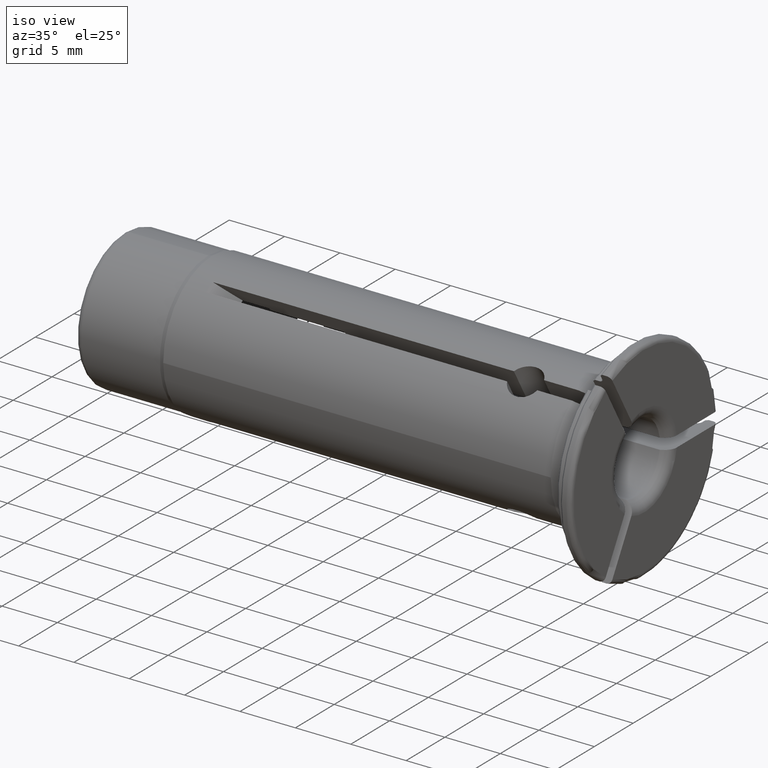
[diagram: clean part render]
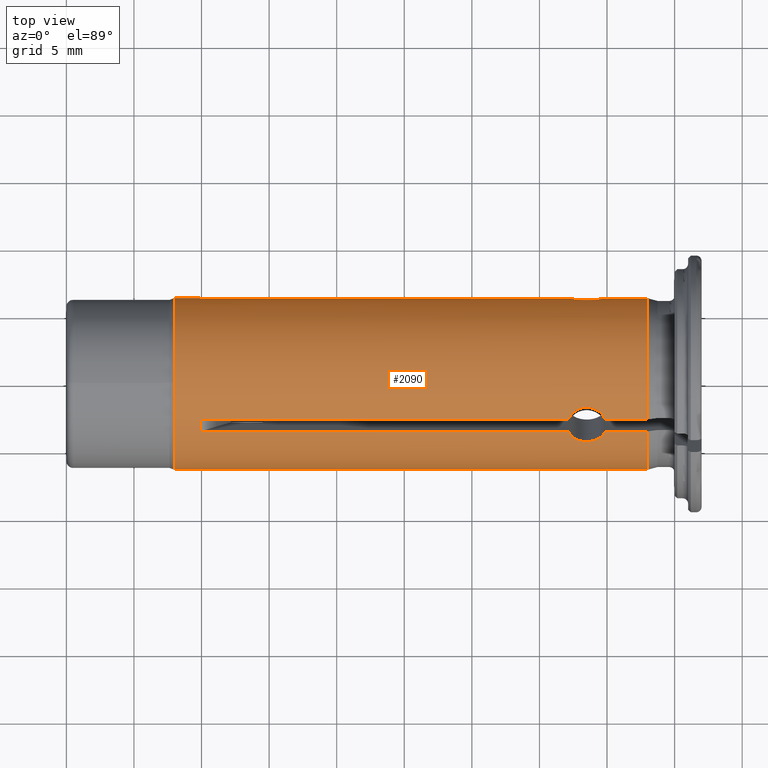
[diagram: tour spotlight — one face highlighted and labeled with its STEP entity id]
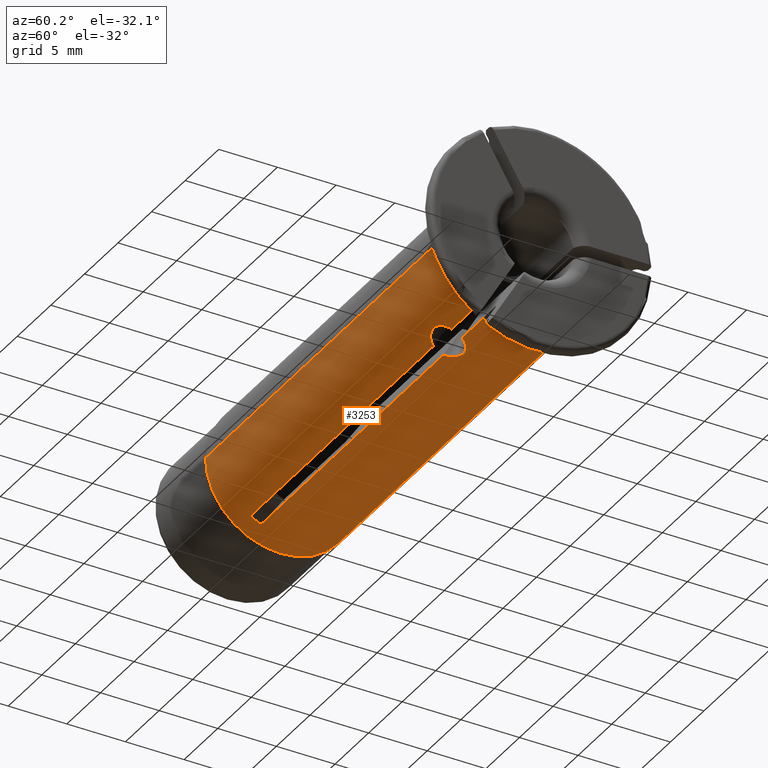
[diagram: tour spotlight — one face highlighted and labeled with its STEP entity id]
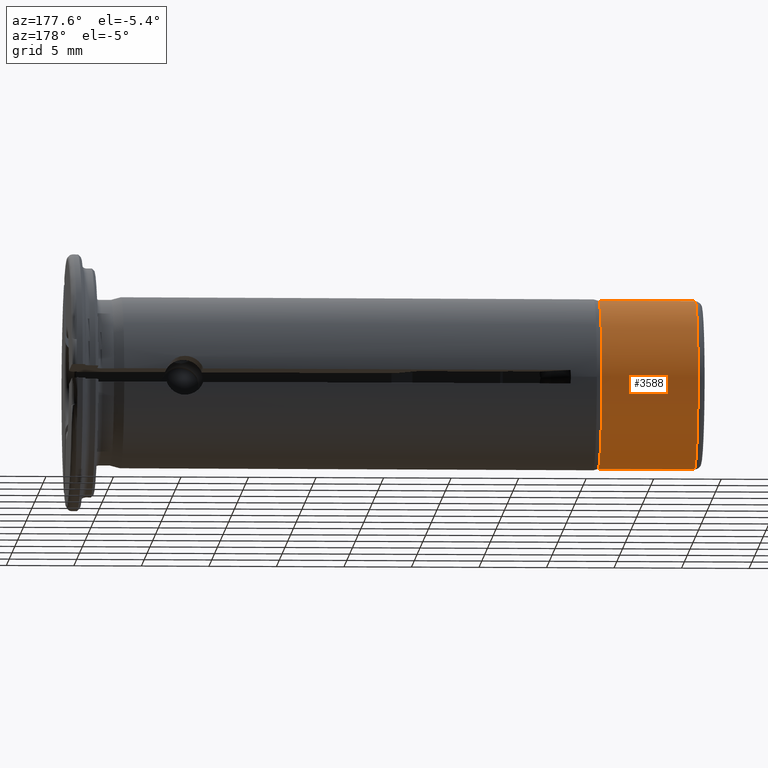
[diagram: tour spotlight — one face highlighted and labeled with its STEP entity id]
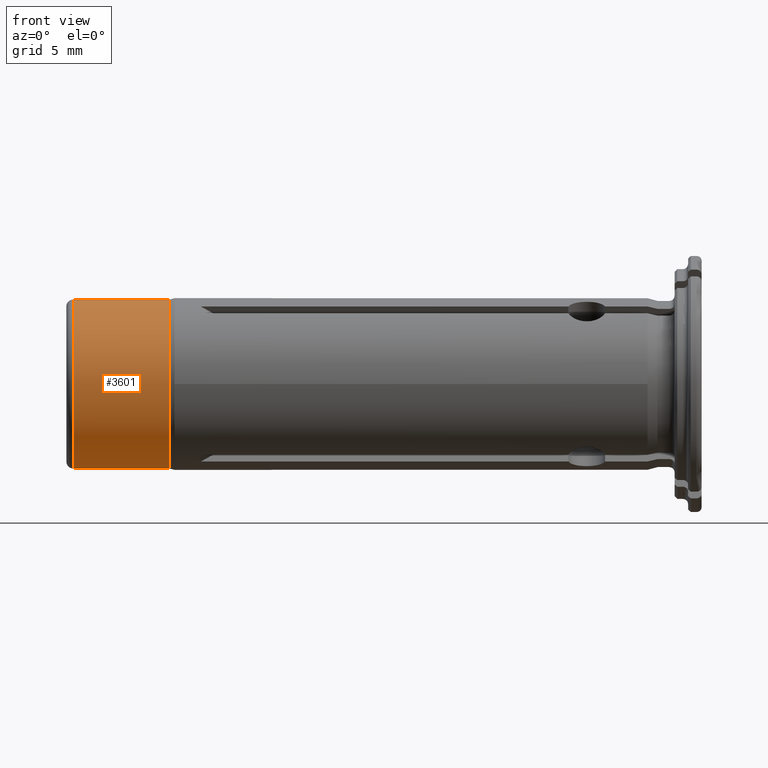
[diagram: tour spotlight — one face highlighted and labeled with its STEP entity id]
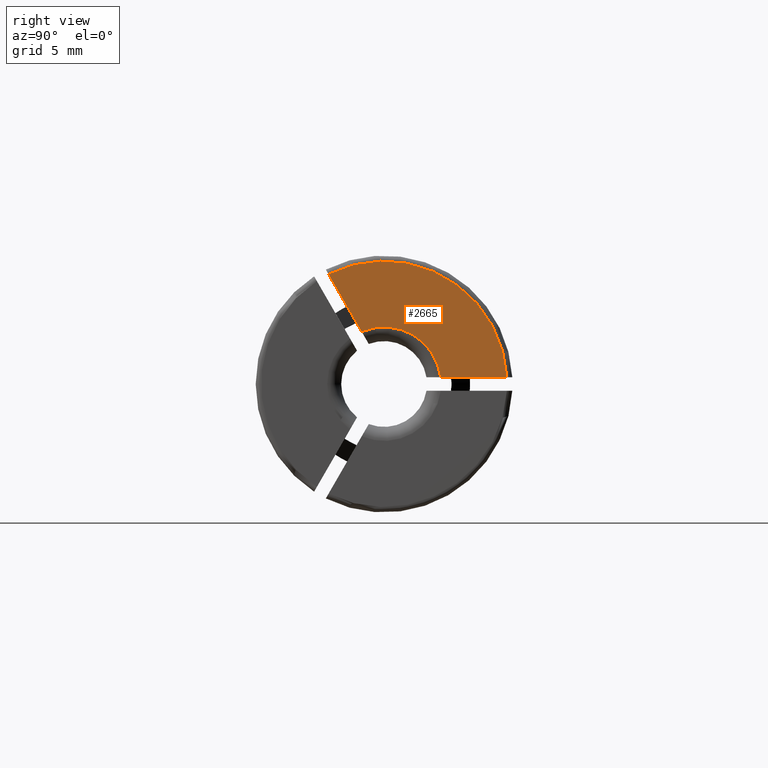
[diagram: tour spotlight — one face highlighted and labeled with its STEP entity id]
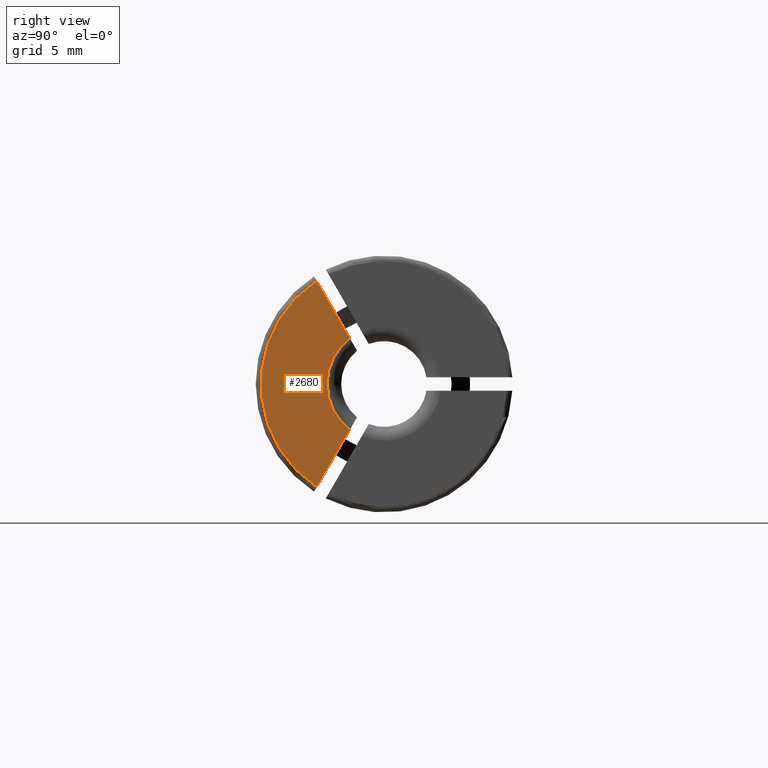
[diagram: tour spotlight — one face highlighted and labeled with its STEP entity id]
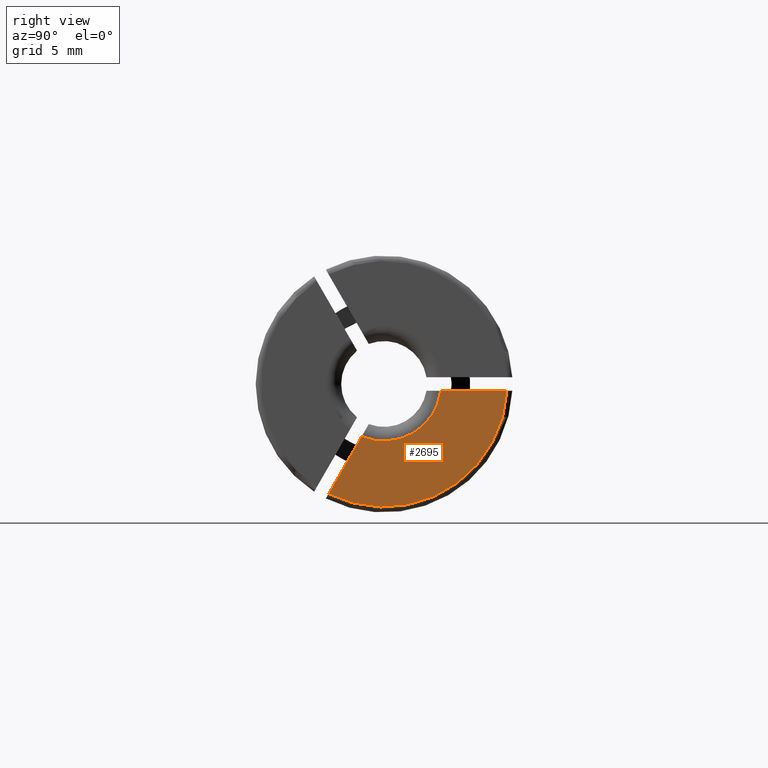
[diagram: tour spotlight — one face highlighted and labeled with its STEP entity id]
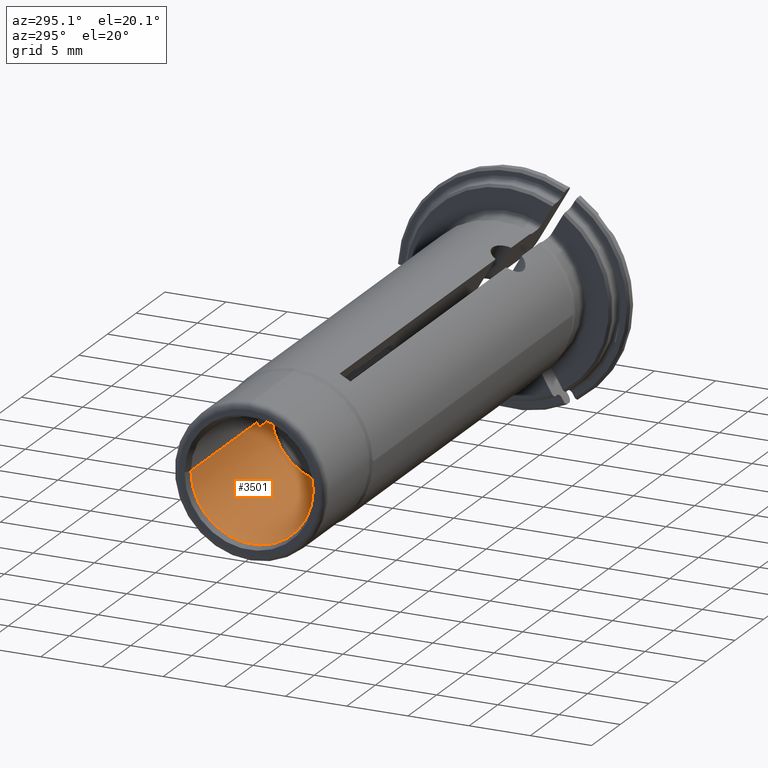
[diagram: tour spotlight — one face highlighted and labeled with its STEP entity id]
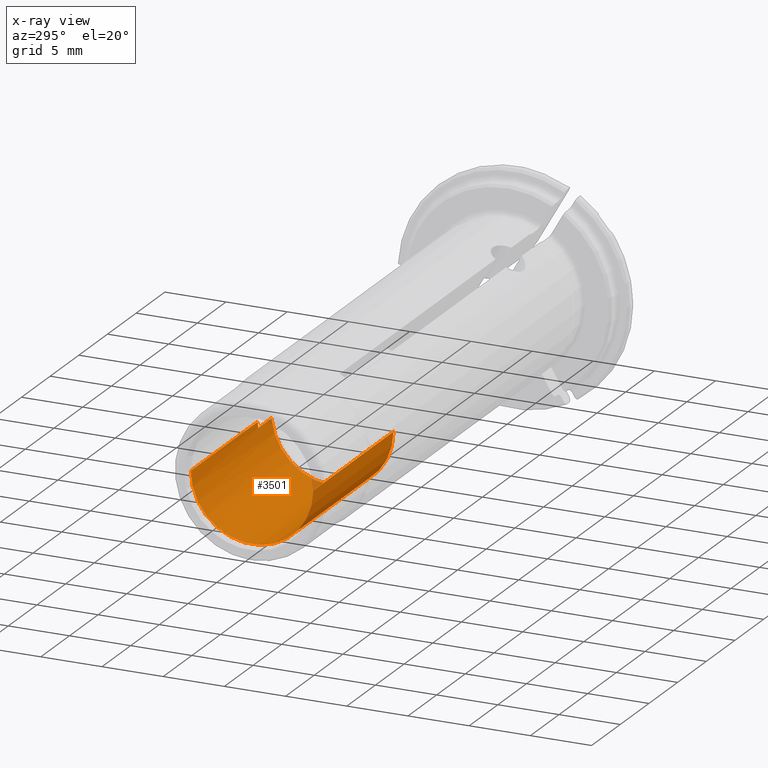
[diagram: x-ray of the same camera — body ghosted, this tour face saturated]
A machine part: a face-by-face anatomy tour. The part has 97 B-rep faces; the first image is the clean iso view, then the 8 largest visible faces are spotlighted one at a time (largest first), each with its STEP entity span.

Face 1 — top view, entity #2090. In plain terms, the highlighted cylindrical surface (partial cylindrical patch) has radius 6.35 mm, axis along (1, 0, 0).
Definition (entity closure, byte-faithful):
#2=DIRECTION('',(1.E0,0.E0,0.E0));
#3=VECTOR('',#2,2.718621971333E1);
#4=CARTESIAN_POINT('',(-3.504728547222E1,-2.732129475009E0,5.732187063572E0));
#5=LINE('',#4,#3);
#6=CARTESIAN_POINT('',(-3.504728547222E1,-3.598154878794E0,5.232187063572E0));
#7=CARTESIAN_POINT('',(-3.506062956251E1,-3.506691739611E0,5.295085911889E0));
#8=CARTESIAN_POINT('',(-3.507847321455E1,-3.320345016039E0,5.416194060731E0));
#9=CARTESIAN_POINT('',(-3.507844494565E1,-3.029907163542E0,5.583856989032E0));
#10=CARTESIAN_POINT('',(-3.506060164657E1,-2.832123418517E0,5.684526999909E0));
#11=CARTESIAN_POINT('',(-3.504728547222E1,-2.732129475009E0,5.732187063572E0));
#13=DIRECTION('',(1.E0,0.E0,0.E0));
#14=VECTOR('',#13,2.718621971333E1);
#15=CARTESIAN_POINT('',(-3.504728547222E1,-3.598154878794E0,5.232187063572E0));
#16=LINE('',#15,#14);
#17=CARTESIAN_POINT('',(-5.138934241118E0,-3.598154878794E0,5.232187063572E0));
#18=CARTESIAN_POINT('',(-5.173329517093E0,-3.675541867259E0,5.178968329854E0));
#19=CARTESIAN_POINT('',(-5.259382255860E0,-3.818739654972E0,5.075502679443E0));
#20=CARTESIAN_POINT('',(-5.439430801580E0,-4.004716737772E0,4.929560072614E0));
#21=CARTESIAN_POINT('',(-5.663400665875E0,-4.154692687564E0,4.803209146917E0));
#22=CARTESIAN_POINT('',(-5.921111493367E0,-4.264419926762E0,4.705515994065E0));
#23=CARTESIAN_POINT('',(-6.204442343704E0,-4.331814262172E0,4.643163834736E0));
#24=CARTESIAN_POINT('',(-6.500240784114E0,-4.354387871349E0,4.621859472811E0));
#25=CARTESIAN_POINT('',(-6.795926665064E0,-4.331753008280E0,4.643221281366E0));
#26=CARTESIAN_POINT('',(-7.079238099286E0,-4.264306437230E0,4.705619600608E0));
#27=CARTESIAN_POINT('',(-7.336850266676E0,-4.154546613766E0,4.803334817277E0));
#28=CARTESIAN_POINT('',(-7.560663146852E0,-4.004634240413E0,4.929626937574E0));
#29=CARTESIAN_POINT('',(-7.740710047069E0,-3.818617913759E0,5.075594139923E0));
#30=CARTESIAN_POINT('',(-7.826693460474E0,-3.675490169324E0,5.179003882325E0));
#31=CARTESIAN_POINT('',(-7.861065758882E0,-3.598154878794E0,5.232187063572E0));
#33=DIRECTION('',(1.E0,0.E0,0.E0));
#34=VECTOR('',#33,3.138934241118E0);
#35=CARTESIAN_POINT('',(-5.138934241118E0,-3.598154878794E0,5.232187063572E0));
#36=LINE('',#35,#34);
#37=CARTESIAN_POINT('',(-2.E0,0.E0,0.E0));
#38=DIRECTION('',(1.E0,0.E0,0.E0));
#39=DIRECTION('',(0.E0,-5.666385635895E-1,8.239664667043E-1));
#40=AXIS2_PLACEMENT_3D('',#37,#38,#39);
#42=CARTESIAN_POINT('',(-3.7E1,0.E0,0.E0));
#43=DIRECTION('',(1.E0,0.E0,0.E0));
#44=DIRECTION('',(0.E0,0.E0,1.E0));
#45=AXIS2_PLACEMENT_3D('',#42,#43,#44);
#47=CARTESIAN_POINT('',(-3.7E1,0.E0,0.E0));
#48=DIRECTION('',(1.E0,0.E0,0.E0));
#49=DIRECTION('',(0.E0,1.E0,0.E0));
#50=AXIS2_PLACEMENT_3D('',#47,#48,#49);
#52=CARTESIAN_POINT('',(-3.504728547222E1,6.330284353803E0,5.E-1));
#53=CARTESIAN_POINT('',(-3.505398612308E1,6.334673306120E0,4.444333676287E-1));
#54=CARTESIAN_POINT('',(-3.506513690498E1,6.341983072084E0,3.332647550809E-1));
#55=CARTESIAN_POINT('',(-3.507514914630E1,6.348552582166E0,1.662964876338E-1));
#56=CARTESIAN_POINT('',(-3.507735405731E1,6.35E0,5.537916832873E-2));
#57=CARTESIAN_POINT('',(-3.507735405731E1,6.35E0,0.E0));
#59=DIRECTION('',(1.E0,0.E0,0.E0));
#60=VECTOR('',#59,2.718621971333E1);
#61=CARTESIAN_POINT('',(-3.504728547222E1,6.330284353803E0,5.E-1));
#62=LINE('',#61,#60);
#63=CARTESIAN_POINT('',(-5.138934241118E0,6.330284353803E0,5.E-1));
#64=CARTESIAN_POINT('',(-5.173663196697E0,6.322817328684E0,5.945367845586E-1));
#65=CARTESIAN_POINT('',(-5.260687900417E0,6.304611639742E0,7.718301673926E-1));
#66=CARTESIAN_POINT('',(-5.443153011235E0,6.270826229008E0,1.007589493420E0));
#67=CARTESIAN_POINT('',(-5.670009409280E0,6.236122476252E0,1.201284763553E0));
#68=CARTESIAN_POINT('',(-5.931281610029E0,6.206311899023E0,1.344907609432E0));
#69=CARTESIAN_POINT('',(-6.218263458682E0,6.186301858215E0,1.432881386696E0));
#70=CARTESIAN_POINT('',(-6.517252947671E0,6.179829492585E0,1.460131403113E0));
#71=CARTESIAN_POINT('',(-6.813842698265E0,6.187913635368E0,1.426005346562E0));
#72=CARTESIAN_POINT('',(-7.095420886176E0,6.208919716144E0,1.332929608257E0));
#73=CARTESIAN_POINT('',(-7.348492185643E0,6.238721795095E0,1.187710971111E0));
#74=CARTESIAN_POINT('',(-7.567264727409E0,6.272669343603E0,9.957919404560E-1));
#75=CARTESIAN_POINT('',(-7.742988964840E0,6.305378229280E0,7.649051364154E-1));
#76=CARTESIAN_POINT('',(-7.827278144117E0,6.323019725081E0,5.919743310617E-1));
#77=CARTESIAN_POINT('',(-7.861065758882E0,6.330284353803E0,5.E-1));
#79=DIRECTION('',(1.E0,0.E0,0.E0));
#80=VECTOR('',#79,3.138934241118E0);
#81=CARTESIAN_POINT('',(-5.138934241118E0,6.330284353803E0,5.E-1));
#82=LINE('',#81,#80);
#83=CARTESIAN_POINT('',(-2.E0,0.E0,0.E0));
#84=DIRECTION('',(1.E0,0.E0,0.E0));
#85=DIRECTION('',(0.E0,9.968951738272E-1,7.874015748032E-2));
#86=AXIS2_PLACEMENT_3D('',#83,#84,#85);
#88=DIRECTION('',(1.E0,0.E0,0.E0));
#89=VECTOR('',#88,3.138934241118E0);
#90=CARTESIAN_POINT('',(-5.138934241118E0,-2.732129475009E0,5.732187063572E0));
#91=LINE('',#90,#89);
#92=CARTESIAN_POINT('',(-7.861065758882E0,-2.732129475009E0,5.732187063572E0));
#93=CARTESIAN_POINT('',(-7.822165289842E0,-2.636242177702E0,5.777889778495E0));
#94=CARTESIAN_POINT('',(-7.723204558755E0,-2.456770283941E0,5.857651416356E0));
#95=CARTESIAN_POINT('',(-7.513441383791E0,-2.219113784565E0,5.951079330555E0));
#96=CARTESIAN_POINT('',(-7.260283471380E0,-2.032468964695E0,6.016711359712E0));
#97=CARTESIAN_POINT('',(-6.970812299386E0,-1.900305981278E0,6.059280730753E0));
#98=CARTESIAN_POINT('',(-6.656787105674E0,-1.832328141419E0,6.079901579575E0));
#99=CARTESIAN_POINT('',(-6.341136259167E0,-1.832623424506E0,6.079812908089E0));
#100=CARTESIAN_POINT('',(-6.028343142666E0,-1.900625193198E0,6.059181085676E0));
#101=CARTESIAN_POINT('',(-5.738610760372E0,-2.033078177266E0,6.016510161943E0));
#102=CARTESIAN_POINT('',(-5.485703603480E0,-2.219961032870E0,5.950760133793E0));
#103=CARTESIAN_POINT('',(-5.276685040665E0,-2.457017030210E0,5.857538899327E0));
#104=CARTESIAN_POINT('',(-5.177802461236E0,-2.636321669340E0,5.777851890435E0));
#105=CARTESIAN_POINT('',(-5.138934241118E0,-2.732129475009E0,5.732187063572E0));
#1356=DIRECTION('',(-1.E0,0.E0,0.E0));
#1357=VECTOR('',#1356,1.922645942687E0);
#1358=CARTESIAN_POINT('',(-3.507735405731E1,6.35E0,0.E0));
#1359=LINE('',#1358,#1357);
#1370=DIRECTION('',(-1.E0,0.E0,0.E0));
#1371=VECTOR('',#1370,3.5E1);
#1372=CARTESIAN_POINT('',(-2.E0,-6.35E0,0.E0));
#1373=LINE('',#1372,#1371);
#1727=CARTESIAN_POINT('',(-3.504728547222E1,6.330284353803E0,5.E-1));
#1728=CARTESIAN_POINT('',(-7.861065758882E0,6.330284353803E0,5.E-1));
#1729=VERTEX_POINT('',#1727);
#1730=VERTEX_POINT('',#1728);
#1731=CARTESIAN_POINT('',(-5.138934241118E0,6.330284353803E0,5.E-1));
#1732=CARTESIAN_POINT('',(-2.E0,6.330284353803E0,5.E-1));
#1733=VERTEX_POINT('',#1731);
#1734=VERTEX_POINT('',#1732);
#1735=VERTEX_POINT('',#57);
#1829=CARTESIAN_POINT('',(-3.504728547222E1,-2.732129475009E0,
5.732187063572E0));
#1830=CARTESIAN_POINT('',(-7.861065758882E0,-2.732129475009E0,
5.732187063572E0));
#1831=VERTEX_POINT('',#1829);
#1832=VERTEX_POINT('',#1830);
#1833=CARTESIAN_POINT('',(-5.138934241118E0,-2.732129475009E0,
5.732187063572E0));
#1834=CARTESIAN_POINT('',(-2.E0,-2.732129475009E0,5.732187063572E0));
#1835=VERTEX_POINT('',#1833);
#1836=VERTEX_POINT('',#1834);
#1837=CARTESIAN_POINT('',(-3.504728547222E1,-3.598154878794E0,
5.232187063572E0));
#1838=CARTESIAN_POINT('',(-7.861065758882E0,-3.598154878794E0,
5.232187063572E0));
#1839=VERTEX_POINT('',#1837);
#1840=VERTEX_POINT('',#1838);
#1841=CARTESIAN_POINT('',(-5.138934241118E0,-3.598154878794E0,
5.232187063572E0));
#1842=CARTESIAN_POINT('',(-2.E0,-3.598154878794E0,5.232187063572E0));
#1843=VERTEX_POINT('',#1841);
#1844=VERTEX_POINT('',#1842);
#1923=CARTESIAN_POINT('',(-2.E0,-6.35E0,0.E0));
#1924=VERTEX_POINT('',#1923);
#2025=CARTESIAN_POINT('',(-3.7E1,6.35E0,0.E0));
#2026=CARTESIAN_POINT('',(-3.7E1,0.E0,6.35E0));
#2027=VERTEX_POINT('',#2025);
#2028=VERTEX_POINT('',#2026);
#2029=CARTESIAN_POINT('',(-3.7E1,-6.35E0,0.E0));
#2030=VERTEX_POINT('',#2029);
#2049=CARTESIAN_POINT('',(0.E0,0.E0,0.E0));
#2050=DIRECTION('',(1.E0,0.E0,0.E0));
#2051=DIRECTION('',(0.E0,-1.E0,0.E0));
#2052=AXIS2_PLACEMENT_3D('',#2049,#2050,#2051);
#2053=CYLINDRICAL_SURFACE('',#2052,6.35E0);
#2055=ORIENTED_EDGE('',*,*,#2054,.F.);
#2057=ORIENTED_EDGE('',*,*,#2056,.F.);
#2059=ORIENTED_EDGE('',*,*,#2058,.T.);
#2061=ORIENTED_EDGE('',*,*,#2060,.F.);
#2063=ORIENTED_EDGE('',*,*,#2062,.T.);
#2065=ORIENTED_EDGE('',*,*,#2064,.T.);
#2067=ORIENTED_EDGE('',*,*,#2066,.T.);
#2069=ORIENTED_EDGE('',*,*,#2068,.F.);
#2071=ORIENTED_EDGE('',*,*,#2070,.F.);
#2073=ORIENTED_EDGE('',*,*,#2072,.F.);
#2075=ORIENTED_EDGE('',*,*,#2074,.F.);
#2077=ORIENTED_EDGE('',*,*,#2076,.T.);
#2079=ORIENTED_EDGE('',*,*,#2078,.F.);
#2081=ORIENTED_EDGE('',*,*,#2080,.T.);
#2083=ORIENTED_EDGE('',*,*,#2082,.T.);
#2085=ORIENTED_EDGE('',*,*,#2084,.F.);
#2087=ORIENTED_EDGE('',*,*,#2086,.F.);
#2088=EDGE_LOOP('',(#2055,#2057,#2059,#2061,#2063,#2065,#2067,#2069,#2071,#2073,
#2075,#2077,#2079,#2081,#2083,#2085,#2087));
#2089=FACE_OUTER_BOUND('',#2088,.F.);
#2090=ADVANCED_FACE('',(#2089),#2053,.T.);
#12=B_SPLINE_CURVE_WITH_KNOTS('',3,(#6,#7,#8,#9,#10,#11),.UNSPECIFIED.,.F.,.F.,(
4,1,1,4),(0.E0,3.333333333333E-1,6.666666666667E-1,1.E0),.UNSPECIFIED.);
#32=B_SPLINE_CURVE_WITH_KNOTS('',3,(#17,#18,#19,#20,#21,#22,#23,#24,#25,#26,#27,
#28,#29,#30,#31),.UNSPECIFIED.,.F.,.F.,(4,1,1,1,1,1,1,1,1,1,1,1,4),(0.E0,
8.333333333333E-2,1.666666666667E-1,2.5E-1,3.333333333333E-1,4.166666666667E-1,
5.E-1,5.833333333333E-1,6.666666666667E-1,7.5E-1,8.333333333333E-1,
9.166666666667E-1,1.E0),.UNSPECIFIED.);
#41=CIRCLE('',#40,6.35E0);
#46=CIRCLE('',#45,6.35E0);
#51=CIRCLE('',#50,6.35E0);
#58=B_SPLINE_CURVE_WITH_KNOTS('',3,(#52,#53,#54,#55,#56,#57),.UNSPECIFIED.,.F.,
.F.,(4,1,1,4),(0.E0,3.333333333333E-1,6.666666666667E-1,1.E0),.UNSPECIFIED.);
#78=B_SPLINE_CURVE_WITH_KNOTS('',3,(#63,#64,#65,#66,#67,#68,#69,#70,#71,#72,#73,
#74,#75,#76,#77),.UNSPECIFIED.,.F.,.F.,(4,1,1,1,1,1,1,1,1,1,1,1,4),(0.E0,
8.333333333333E-2,1.666666666667E-1,2.5E-1,3.333333333333E-1,4.166666666667E-1,
5.E-1,5.833333333333E-1,6.666666666667E-1,7.5E-1,8.333333333333E-1,
9.166666666667E-1,1.E0),.UNSPECIFIED.);
#87=CIRCLE('',#86,6.35E0);
#106=B_SPLINE_CURVE_WITH_KNOTS('',3,(#92,#93,#94,#95,#96,#97,#98,#99,#100,#101,
#102,#103,#104,#105),.UNSPECIFIED.,.F.,.F.,(4,1,1,1,1,1,1,1,1,1,1,4),(0.E0,
9.090909090909E-2,1.818181818182E-1,2.727272727273E-1,3.636363636364E-1,
4.545454545455E-1,5.454545454545E-1,6.363636363636E-1,7.272727272727E-1,
8.181818181818E-1,9.090909090909E-1,1.E0),.UNSPECIFIED.);
#2054=EDGE_CURVE('',#1831,#1832,#5,.T.);
#2056=EDGE_CURVE('',#1839,#1831,#12,.T.);
#2058=EDGE_CURVE('',#1839,#1840,#16,.T.);
#2060=EDGE_CURVE('',#1843,#1840,#32,.T.);
#2062=EDGE_CURVE('',#1843,#1844,#36,.T.);
#2064=EDGE_CURVE('',#1844,#1924,#41,.T.);
#2066=EDGE_CURVE('',#1924,#2030,#1373,.T.);
#2068=EDGE_CURVE('',#2028,#2030,#46,.T.);
#2070=EDGE_CURVE('',#2027,#2028,#51,.T.);
#2072=EDGE_CURVE('',#1735,#2027,#1359,.T.);
#2074=EDGE_CURVE('',#1729,#1735,#58,.T.);
#2076=EDGE_CURVE('',#1729,#1730,#62,.T.);
#2078=EDGE_CURVE('',#1733,#1730,#78,.T.);
#2080=EDGE_CURVE('',#1733,#1734,#82,.T.);
#2082=EDGE_CURVE('',#1734,#1836,#87,.T.);
#2084=EDGE_CURVE('',#1835,#1836,#91,.T.);
#2086=EDGE_CURVE('',#1832,#1835,#106,.T.);

Face 2 — auxiliary view, entity #3253. In plain terms, the highlighted cylindrical surface (partial cylindrical patch) has radius 6.35 mm, axis along (1, 0, 0).
Definition (entity closure, byte-faithful):
#57=CARTESIAN_POINT('',(-3.507735405731E1,6.35E0,0.E0));
#1286=DIRECTION('',(1.E0,0.E0,0.E0));
#1287=VECTOR('',#1286,2.718621971333E1);
#1288=CARTESIAN_POINT('',(-3.504728547222E1,-3.598154878794E0,
-5.232187063572E0));
#1289=LINE('',#1288,#1287);
#1290=CARTESIAN_POINT('',(-3.504728547222E1,-2.732129475009E0,
-5.732187063572E0));
#1291=CARTESIAN_POINT('',(-3.506062956251E1,-2.832333045112E0,
-5.684427085689E0));
#1292=CARTESIAN_POINT('',(-3.507847321455E1,-3.030389140400E0,
-5.583600163585E0));
#1293=CARTESIAN_POINT('',(-3.507844494565E1,-3.320808421830E0,
-5.415905069252E0));
#1294=CARTESIAN_POINT('',(-3.506060164657E1,-3.506883081161E0,
-5.294954327043E0));
#1295=CARTESIAN_POINT('',(-3.504728547222E1,-3.598154878794E0,
-5.232187063572E0));
#1297=DIRECTION('',(1.E0,0.E0,0.E0));
#1298=VECTOR('',#1297,2.718621971333E1);
#1299=CARTESIAN_POINT('',(-3.504728547222E1,-2.732129475009E0,
-5.732187063572E0));
#1300=LINE('',#1299,#1298);
#1301=CARTESIAN_POINT('',(-5.138934241118E0,-2.732129475009E0,
-5.732187063572E0));
#1302=CARTESIAN_POINT('',(-5.177832573205E0,-2.636247445162E0,
-5.777887267868E0));
#1303=CARTESIAN_POINT('',(-5.276782768736E0,-2.456788946350E0,
-5.857643595869E0));
#1304=CARTESIAN_POINT('',(-5.486542897470E0,-2.219130326890E0,
-5.951072712070E0));
#1305=CARTESIAN_POINT('',(-5.739610487568E0,-2.032550283408E0,
-6.016683411606E0));
#1306=CARTESIAN_POINT('',(-6.028923265163E0,-1.900378340763E0,
-6.059258513588E0));
#1307=CARTESIAN_POINT('',(-6.343314096067E0,-1.832310300236E0,
-6.079907023137E0));
#1308=CARTESIAN_POINT('',(-6.658833253319E0,-1.832610707520E0,
-6.079816907746E0));
#1309=CARTESIAN_POINT('',(-6.972009010761E0,-1.900729691590E0,
-6.059148783049E0));
#1310=CARTESIAN_POINT('',(-7.261507154602E0,-2.033171106722E0,
-6.016478114743E0));
#1311=CARTESIAN_POINT('',(-7.514318327052E0,-2.219983065716E0,
-5.950751395346E0));
#1312=CARTESIAN_POINT('',(-7.723325927646E0,-2.457034441818E0,
-5.857531522415E0));
#1313=CARTESIAN_POINT('',(-7.822199222041E0,-2.636325818516E0,
-5.777849912816E0));
#1314=CARTESIAN_POINT('',(-7.861065758882E0,-2.732129475009E0,
-5.732187063572E0));
#1316=DIRECTION('',(1.E0,0.E0,0.E0));
#1317=VECTOR('',#1316,3.138934241118E0);
#1318=CARTESIAN_POINT('',(-5.138934241118E0,-2.732129475009E0,
-5.732187063572E0));
#1319=LINE('',#1318,#1317);
#1320=CARTESIAN_POINT('',(-2.E0,0.E0,0.E0));
#1321=DIRECTION('',(1.E0,0.E0,0.E0));
#1322=DIRECTION('',(0.E0,-4.302566102377E-1,-9.027066241846E-1));
#1323=AXIS2_PLACEMENT_3D('',#1320,#1321,#1322);
#1325=DIRECTION('',(1.E0,0.E0,0.E0));
#1326=VECTOR('',#1325,3.138934241118E0);
#1327=CARTESIAN_POINT('',(-5.138934241118E0,6.330284353803E0,-5.E-1));
#1328=LINE('',#1327,#1326);
#1329=CARTESIAN_POINT('',(-7.861065758882E0,6.330284353803E0,-5.E-1));
#1330=CARTESIAN_POINT('',(-7.826252450055E0,6.322799192008E0,
-5.947664051945E-1));
#1331=CARTESIAN_POINT('',(-7.738981890797E0,6.304542734804E0,
-7.724500527189E-1));
#1332=CARTESIAN_POINT('',(-7.555905629205E0,6.270660540169E0,
-1.008642289992E0));
#1333=CARTESIAN_POINT('',(-7.328323020926E0,6.235890044127E0,
-1.202492588515E0));
#1334=CARTESIAN_POINT('',(-7.066143396890E0,6.206062444598E0,
-1.346051209187E0));
#1335=CARTESIAN_POINT('',(-6.778230621161E0,6.186128430805E0,
-1.433620598453E0));
#1336=CARTESIAN_POINT('',(-6.478469741272E0,6.179834876781E0,
-1.460108975820E0));
#1337=CARTESIAN_POINT('',(-6.181751658728E0,6.188142171976E0,
-1.425029025751E0));
#1338=CARTESIAN_POINT('',(-5.900709898882E0,6.209305206249E0,
-1.331151109712E0));
#1339=CARTESIAN_POINT('',(-5.648800441544E0,6.239106606063E0,
-1.185686642644E0));
#1340=CARTESIAN_POINT('',(-5.431240895726E0,6.272935294771E0,
-9.940736593858E-1));
#1341=CARTESIAN_POINT('',(-5.256502329925E0,6.305484484564E0,
-7.639358035882E-1));
#1342=CARTESIAN_POINT('',(-5.172592236976E0,6.323047594265E0,
-5.916214913492E-1));
#1343=CARTESIAN_POINT('',(-5.138934241118E0,6.330284353803E0,-5.E-1));
#1345=DIRECTION('',(1.E0,0.E0,0.E0));
#1346=VECTOR('',#1345,2.718621971333E1);
#1347=CARTESIAN_POINT('',(-3.504728547222E1,6.330284353803E0,-5.E-1));
#1348=LINE('',#1347,#1346);
#1349=CARTESIAN_POINT('',(-3.507735405731E1,6.35E0,0.E0));
#1350=CARTESIAN_POINT('',(-3.507735405731E1,6.35E0,-5.541250029991E-2));
#1351=CARTESIAN_POINT('',(-3.507514629154E1,6.348550708258E0,
-1.663740076726E-1));
#1352=CARTESIAN_POINT('',(-3.506513176289E1,6.341979699640E0,
-3.333222279429E-1));
#1353=CARTESIAN_POINT('',(-3.505398317924E1,6.334671377891E0,
-4.444577801055E-1));
#1354=CARTESIAN_POINT('',(-3.504728547222E1,6.330284353803E0,-5.E-1));
#1356=DIRECTION('',(-1.E0,0.E0,0.E0));
#1357=VECTOR('',#1356,1.922645942687E0);
#1358=CARTESIAN_POINT('',(-3.507735405731E1,6.35E0,0.E0));
#1359=LINE('',#1358,#1357);
#1360=CARTESIAN_POINT('',(-3.7E1,0.E0,0.E0));
#1361=DIRECTION('',(1.E0,0.E0,0.E0));
#1362=DIRECTION('',(0.E0,0.E0,-1.E0));
#1363=AXIS2_PLACEMENT_3D('',#1360,#1361,#1362);
#1365=CARTESIAN_POINT('',(-3.7E1,0.E0,0.E0));
#1366=DIRECTION('',(1.E0,0.E0,0.E0));
#1367=DIRECTION('',(0.E0,-1.E0,0.E0));
#1368=AXIS2_PLACEMENT_3D('',#1365,#1366,#1367);
#1370=DIRECTION('',(-1.E0,0.E0,0.E0));
#1371=VECTOR('',#1370,3.5E1);
#1372=CARTESIAN_POINT('',(-2.E0,-6.35E0,0.E0));
#1373=LINE('',#1372,#1371);
#1374=CARTESIAN_POINT('',(-2.E0,0.E0,0.E0));
#1375=DIRECTION('',(1.E0,0.E0,0.E0));
#1376=DIRECTION('',(0.E0,-1.E0,0.E0));
#1377=AXIS2_PLACEMENT_3D('',#1374,#1375,#1376);
#1379=DIRECTION('',(1.E0,0.E0,0.E0));
#1380=VECTOR('',#1379,3.138934241118E0);
#1381=CARTESIAN_POINT('',(-5.138934241118E0,-3.598154878794E0,
-5.232187063572E0));
#1382=LINE('',#1381,#1380);
#1383=CARTESIAN_POINT('',(-7.861065758882E0,-3.598154878794E0,
-5.232187063572E0));
#1384=CARTESIAN_POINT('',(-7.826670482907E0,-3.675541867259E0,
-5.178968329854E0));
#1385=CARTESIAN_POINT('',(-7.740617744140E0,-3.818739654972E0,
-5.075502679443E0));
#1386=CARTESIAN_POINT('',(-7.560569198420E0,-4.004716737772E0,
-4.929560072614E0));
#1387=CARTESIAN_POINT('',(-7.336599334125E0,-4.154692687564E0,
-4.803209146917E0));
#1388=CARTESIAN_POINT('',(-7.078888506633E0,-4.264419926762E0,
-4.705515994065E0));
#1389=CARTESIAN_POINT('',(-6.795557656296E0,-4.331814262172E0,
-4.643163834736E0));
#1390=CARTESIAN_POINT('',(-6.499759215886E0,-4.354387871349E0,
-4.621859472811E0));
#1391=CARTESIAN_POINT('',(-6.204073334936E0,-4.331753008280E0,
-4.643221281366E0));
#1392=CARTESIAN_POINT('',(-5.920761900714E0,-4.264306437230E0,
-4.705619600608E0));
#1393=CARTESIAN_POINT('',(-5.663149733324E0,-4.154546613766E0,
-4.803334817277E0));
#1394=CARTESIAN_POINT('',(-5.439336853148E0,-4.004634240413E0,
-4.929626937574E0));
#1395=CARTESIAN_POINT('',(-5.259289952931E0,-3.818617913759E0,
-5.075594139923E0));
#1396=CARTESIAN_POINT('',(-5.173306539526E0,-3.675490169324E0,
-5.179003882325E0));
#1397=CARTESIAN_POINT('',(-5.138934241118E0,-3.598154878794E0,
-5.232187063572E0));
#1735=VERTEX_POINT('',#57);
#1756=CARTESIAN_POINT('',(-3.504728547222E1,6.330284353803E0,-5.E-1));
#1757=CARTESIAN_POINT('',(-7.861065758882E0,6.330284353803E0,-5.E-1));
#1758=VERTEX_POINT('',#1756);
#1759=VERTEX_POINT('',#1757);
#1760=CARTESIAN_POINT('',(-5.138934241118E0,6.330284353803E0,-5.E-1));
#1761=CARTESIAN_POINT('',(-2.E0,6.330284353803E0,-5.E-1));
#1762=VERTEX_POINT('',#1760);
#1763=VERTEX_POINT('',#1761);
#1923=CARTESIAN_POINT('',(-2.E0,-6.35E0,0.E0));
#1924=VERTEX_POINT('',#1923);
#1949=CARTESIAN_POINT('',(-3.504728547222E1,-3.598154878794E0,
-5.232187063572E0));
#1950=CARTESIAN_POINT('',(-7.861065758882E0,-3.598154878794E0,
-5.232187063572E0));
#1951=VERTEX_POINT('',#1949);
#1952=VERTEX_POINT('',#1950);
#1953=CARTESIAN_POINT('',(-5.138934241118E0,-3.598154878794E0,
-5.232187063572E0));
#1954=CARTESIAN_POINT('',(-2.E0,-3.598154878794E0,-5.232187063572E0));
#1955=VERTEX_POINT('',#1953);
#1956=VERTEX_POINT('',#1954);
#1957=CARTESIAN_POINT('',(-3.504728547222E1,-2.732129475009E0,
-5.732187063572E0));
#1958=CARTESIAN_POINT('',(-7.861065758882E0,-2.732129475009E0,
-5.732187063572E0));
#1959=VERTEX_POINT('',#1957);
#1960=VERTEX_POINT('',#1958);
#1961=CARTESIAN_POINT('',(-5.138934241118E0,-2.732129475009E0,
-5.732187063572E0));
#1962=CARTESIAN_POINT('',(-2.E0,-2.732129475009E0,-5.732187063572E0));
#1963=VERTEX_POINT('',#1961);
#1964=VERTEX_POINT('',#1962);
#2025=CARTESIAN_POINT('',(-3.7E1,6.35E0,0.E0));
#2027=VERTEX_POINT('',#2025);
#2029=CARTESIAN_POINT('',(-3.7E1,-6.35E0,0.E0));
#2030=VERTEX_POINT('',#2029);
#2031=CARTESIAN_POINT('',(-3.7E1,0.E0,-6.35E0));
#2032=VERTEX_POINT('',#2031);
#3221=CARTESIAN_POINT('',(0.E0,0.E0,0.E0));
#3222=DIRECTION('',(1.E0,0.E0,0.E0));
#3223=DIRECTION('',(0.E0,-1.E0,0.E0));
#3224=AXIS2_PLACEMENT_3D('',#3221,#3222,#3223);
#3225=CYLINDRICAL_SURFACE('',#3224,6.35E0);
#3227=ORIENTED_EDGE('',*,*,#3226,.F.);
#3229=ORIENTED_EDGE('',*,*,#3228,.F.);
#3230=ORIENTED_EDGE('',*,*,#2637,.T.);
#3231=ORIENTED_EDGE('',*,*,#2556,.F.);
#3232=ORIENTED_EDGE('',*,*,#2621,.T.);
#3233=ORIENTED_EDGE('',*,*,#3153,.T.);
#3235=ORIENTED_EDGE('',*,*,#3234,.F.);
#3237=ORIENTED_EDGE('',*,*,#3236,.F.);
#3239=ORIENTED_EDGE('',*,*,#3238,.F.);
#3240=ORIENTED_EDGE('',*,*,#3210,.F.);
#3241=ORIENTED_EDGE('',*,*,#2072,.T.);
#3243=ORIENTED_EDGE('',*,*,#3242,.F.);
#3245=ORIENTED_EDGE('',*,*,#3244,.F.);
#3246=ORIENTED_EDGE('',*,*,#2066,.F.);
#3247=ORIENTED_EDGE('',*,*,#3136,.T.);
#3249=ORIENTED_EDGE('',*,*,#3248,.F.);
#3250=ORIENTED_EDGE('',*,*,#2571,.F.);
#3251=EDGE_LOOP('',(#3227,#3229,#3230,#3231,#3232,#3233,#3235,#3237,#3239,#3240,
#3241,#3243,#3245,#3246,#3247,#3249,#3250));
#3252=FACE_OUTER_BOUND('',#3251,.F.);
#3253=ADVANCED_FACE('',(#3252),#3225,.T.);
#1296=B_SPLINE_CURVE_WITH_KNOTS('',3,(#1290,#1291,#1292,#1293,#1294,#1295),
.UNSPECIFIED.,.F.,.F.,(4,1,1,4),(0.E0,3.333333333333E-1,6.666666666667E-1,1.E0),
.UNSPECIFIED.);
#1315=B_SPLINE_CURVE_WITH_KNOTS('',3,(#1301,#1302,#1303,#1304,#1305,#1306,#1307,
#1308,#1309,#1310,#1311,#1312,#1313,#1314),.UNSPECIFIED.,.F.,.F.,(4,1,1,1,1,1,1,
1,1,1,1,4),(0.E0,9.090909090909E-2,1.818181818182E-1,2.727272727273E-1,
3.636363636364E-1,4.545454545455E-1,5.454545454545E-1,6.363636363636E-1,
7.272727272727E-1,8.181818181818E-1,9.090909090909E-1,1.E0),.UNSPECIFIED.);
#1324=CIRCLE('',#1323,6.35E0);
#1344=B_SPLINE_CURVE_WITH_KNOTS('',3,(#1329,#1330,#1331,#1332,#1333,#1334,#1335,
#1336,#1337,#1338,#1339,#1340,#1341,#1342,#1343),.UNSPECIFIED.,.F.,.F.,(4,1,1,1,
1,1,1,1,1,1,1,1,4),(0.E0,8.333333333333E-2,1.666666666667E-1,2.5E-1,
3.333333333333E-1,4.166666666667E-1,5.E-1,5.833333333333E-1,6.666666666667E-1,
7.5E-1,8.333333333333E-1,9.166666666667E-1,1.E0),.UNSPECIFIED.);
#1355=B_SPLINE_CURVE_WITH_KNOTS('',3,(#1349,#1350,#1351,#1352,#1353,#1354),
.UNSPECIFIED.,.F.,.F.,(4,1,1,4),(0.E0,3.333333333333E-1,6.666666666667E-1,1.E0),
.UNSPECIFIED.);
#1364=CIRCLE('',#1363,6.35E0);
#1369=CIRCLE('',#1368,6.35E0);
#1378=CIRCLE('',#1377,6.35E0);
#1398=B_SPLINE_CURVE_WITH_KNOTS('',3,(#1383,#1384,#1385,#1386,#1387,#1388,#1389,
#1390,#1391,#1392,#1393,#1394,#1395,#1396,#1397),.UNSPECIFIED.,.F.,.F.,(4,1,1,1,
1,1,1,1,1,1,1,1,4),(0.E0,8.333333333333E-2,1.666666666667E-1,2.5E-1,
3.333333333333E-1,4.166666666667E-1,5.E-1,5.833333333333E-1,6.666666666667E-1,
7.5E-1,8.333333333333E-1,9.166666666667E-1,1.E0),.UNSPECIFIED.);
#2066=EDGE_CURVE('',#1924,#2030,#1373,.T.);
#2072=EDGE_CURVE('',#1735,#2027,#1359,.T.);
#2556=EDGE_CURVE('',#1963,#1960,#1315,.T.);
#2571=EDGE_CURVE('',#1952,#1955,#1398,.T.);
#2621=EDGE_CURVE('',#1963,#1964,#1319,.T.);
#2637=EDGE_CURVE('',#1959,#1960,#1300,.T.);
#3136=EDGE_CURVE('',#1924,#1956,#1378,.T.);
#3153=EDGE_CURVE('',#1964,#1763,#1324,.T.);
#3210=EDGE_CURVE('',#1735,#1758,#1355,.T.);
#3226=EDGE_CURVE('',#1951,#1952,#1289,.T.);
#3228=EDGE_CURVE('',#1959,#1951,#1296,.T.);
#3234=EDGE_CURVE('',#1762,#1763,#1328,.T.);
#3236=EDGE_CURVE('',#1759,#1762,#1344,.T.);
#3238=EDGE_CURVE('',#1758,#1759,#1348,.T.);
#3242=EDGE_CURVE('',#2032,#2027,#1364,.T.);
#3244=EDGE_CURVE('',#2030,#2032,#1369,.T.);
#3248=EDGE_CURVE('',#1955,#1956,#1382,.T.);

Face 3 — auxiliary view, entity #3588. In plain terms, the highlighted cylindrical surface (partial cylindrical patch) has radius 6.25 mm, axis along (1, 0, 0).
Definition (entity closure, byte-faithful):
#1675=CARTESIAN_POINT('',(-4.45E1,0.E0,0.E0));
#1676=DIRECTION('',(-1.E0,0.E0,0.E0));
#1677=DIRECTION('',(0.E0,0.E0,1.E0));
#1678=AXIS2_PLACEMENT_3D('',#1675,#1676,#1677);
#1685=DIRECTION('',(1.E0,6.814754829160E-13,0.E0));
#1686=VECTOR('',#1685,7.126794919243E0);
#1687=CARTESIAN_POINT('',(-4.45E1,-4.857501413484E-12,6.25E0));
#1688=LINE('',#1687,#1686);
#1689=DIRECTION('',(1.E0,-6.814145561805E-13,0.E0));
#1690=VECTOR('',#1689,7.126794919243E0);
#1691=CARTESIAN_POINT('',(-4.45E1,4.857067201135E-12,-6.25E0));
#1692=LINE('',#1691,#1690);
#1706=CARTESIAN_POINT('',(-3.737320508076E1,0.E0,0.E0));
#1707=DIRECTION('',(1.E0,0.E0,0.E0));
#1708=DIRECTION('',(0.E0,0.E0,-1.E0));
#1709=AXIS2_PLACEMENT_3D('',#1706,#1707,#1708);
#2021=CARTESIAN_POINT('',(-3.737320508076E1,0.E0,-6.25E0));
#2022=CARTESIAN_POINT('',(-3.737320508076E1,0.E0,6.25E0));
#2023=VERTEX_POINT('',#2021);
#2024=VERTEX_POINT('',#2022);
#2037=CARTESIAN_POINT('',(-4.45E1,0.E0,-6.25E0));
#2038=CARTESIAN_POINT('',(-4.45E1,0.E0,6.25E0));
#2039=VERTEX_POINT('',#2037);
#2040=VERTEX_POINT('',#2038);
#3574=CARTESIAN_POINT('',(0.E0,0.E0,0.E0));
#3575=DIRECTION('',(1.E0,0.E0,0.E0));
#3576=DIRECTION('',(0.E0,0.E0,1.E0));
#3577=AXIS2_PLACEMENT_3D('',#3574,#3575,#3576);
#3578=CYLINDRICAL_SURFACE('',#3577,6.25E0);
#3579=ORIENTED_EDGE('',*,*,#3568,.T.);
#3581=ORIENTED_EDGE('',*,*,#3580,.T.);
#3583=ORIENTED_EDGE('',*,*,#3582,.T.);
#3585=ORIENTED_EDGE('',*,*,#3584,.F.);
#3586=EDGE_LOOP('',(#3579,#3581,#3583,#3585));
#3587=FACE_OUTER_BOUND('',#3586,.F.);
#3588=ADVANCED_FACE('',(#3587),#3578,.T.);
#1679=CIRCLE('',#1678,6.25E0);
#1710=CIRCLE('',#1709,6.25E0);
#3568=EDGE_CURVE('',#2040,#2039,#1679,.T.);
#3580=EDGE_CURVE('',#2039,#2023,#1692,.T.);
#3582=EDGE_CURVE('',#2023,#2024,#1710,.T.);
#3584=EDGE_CURVE('',#2040,#2024,#1688,.T.);

Face 4 — front view, entity #3601. In plain terms, the highlighted cylindrical surface (partial cylindrical patch) has radius 6.25 mm, axis along (1, 0, 0).
Definition (entity closure, byte-faithful):
#1680=CARTESIAN_POINT('',(-4.45E1,0.E0,0.E0));
#1681=DIRECTION('',(-1.E0,0.E0,0.E0));
#1682=DIRECTION('',(0.E0,0.E0,-1.E0));
#1683=AXIS2_PLACEMENT_3D('',#1680,#1681,#1682);
#1685=DIRECTION('',(1.E0,6.814754829160E-13,0.E0));
#1686=VECTOR('',#1685,7.126794919243E0);
#1687=CARTESIAN_POINT('',(-4.45E1,-4.857501413484E-12,6.25E0));
#1688=LINE('',#1687,#1686);
#1689=DIRECTION('',(1.E0,-6.814145561805E-13,0.E0));
#1690=VECTOR('',#1689,7.126794919243E0);
#1691=CARTESIAN_POINT('',(-4.45E1,4.857067201135E-12,-6.25E0));
#1692=LINE('',#1691,#1690);
#1697=CARTESIAN_POINT('',(-3.737320508076E1,0.E0,0.E0));
#1698=DIRECTION('',(-1.E0,0.E0,0.E0));
#1699=DIRECTION('',(0.E0,0.E0,-1.E0));
#1700=AXIS2_PLACEMENT_3D('',#1697,#1698,#1699);
#2021=CARTESIAN_POINT('',(-3.737320508076E1,0.E0,-6.25E0));
#2022=CARTESIAN_POINT('',(-3.737320508076E1,0.E0,6.25E0));
#2023=VERTEX_POINT('',#2021);
#2024=VERTEX_POINT('',#2022);
#2037=CARTESIAN_POINT('',(-4.45E1,0.E0,-6.25E0));
#2038=CARTESIAN_POINT('',(-4.45E1,0.E0,6.25E0));
#2039=VERTEX_POINT('',#2037);
#2040=VERTEX_POINT('',#2038);
#3589=CARTESIAN_POINT('',(0.E0,0.E0,0.E0));
#3590=DIRECTION('',(1.E0,0.E0,0.E0));
#3591=DIRECTION('',(0.E0,0.E0,1.E0));
#3592=AXIS2_PLACEMENT_3D('',#3589,#3590,#3591);
#3593=CYLINDRICAL_SURFACE('',#3592,6.25E0);
#3594=ORIENTED_EDGE('',*,*,#3554,.T.);
#3595=ORIENTED_EDGE('',*,*,#3584,.T.);
#3597=ORIENTED_EDGE('',*,*,#3596,.F.);
#3598=ORIENTED_EDGE('',*,*,#3580,.F.);
#3599=EDGE_LOOP('',(#3594,#3595,#3597,#3598));
#3600=FACE_OUTER_BOUND('',#3599,.F.);
#3601=ADVANCED_FACE('',(#3600),#3593,.T.);
#1684=CIRCLE('',#1683,6.25E0);
#1701=CIRCLE('',#1700,6.25E0);
#3554=EDGE_CURVE('',#2039,#2040,#1684,.T.);
#3580=EDGE_CURVE('',#2039,#2023,#1692,.T.);
#3584=EDGE_CURVE('',#2040,#2024,#1688,.T.);
#3596=EDGE_CURVE('',#2023,#2024,#1701,.T.);

Face 5 — right view, entity #2665. In plain terms, the highlighted planar face has unit normal (1, 0, 0).
Definition (entity closure, byte-faithful):
#648=DIRECTION('',(0.E0,5.E-1,-8.660254037844E-1));
#649=VECTOR('',#648,4.901769474549E0);
#650=CARTESIAN_POINT('',(2.E0,-4.110113974748E0,8.118926229162E0));
#651=LINE('',#650,#649);
#652=DIRECTION('',(0.E0,-1.E0,0.E0));
#653=VECTOR('',#652,4.901769474549E0);
#654=CARTESIAN_POINT('',(2.E0,9.086253353280E0,5.E-1));
#655=LINE('',#654,#653);
#699=CARTESIAN_POINT('',(2.E0,0.E0,0.E0));
#700=DIRECTION('',(1.E0,0.E0,0.E0));
#701=DIRECTION('',(0.E0,9.984893794814E-1,5.494505494505E-2));
#702=AXIS2_PLACEMENT_3D('',#699,#700,#701);
#1415=CARTESIAN_POINT('',(2.E0,0.E0,0.E0));
#1416=DIRECTION('',(-1.E0,0.E0,0.E0));
#1417=DIRECTION('',(0.E0,-3.937187237322E-1,9.192309647649E-1));
#1418=AXIS2_PLACEMENT_3D('',#1415,#1416,#1417);
#1740=CARTESIAN_POINT('',(2.E0,9.086253353280E0,5.E-1));
#1741=CARTESIAN_POINT('',(2.E0,4.184483878732E0,5.E-1));
#1742=VERTEX_POINT('',#1740);
#1743=VERTEX_POINT('',#1741);
#1845=CARTESIAN_POINT('',(2.E0,-4.110113974748E0,8.118926229162E0));
#1846=CARTESIAN_POINT('',(2.E0,-1.659229237474E0,3.873869340708E0));
#1847=VERTEX_POINT('',#1845);
#1848=VERTEX_POINT('',#1846);
#2651=CARTESIAN_POINT('',(2.E0,0.E0,0.E0));
#2652=DIRECTION('',(1.E0,0.E0,0.E0));
#2653=DIRECTION('',(0.E0,-1.E0,0.E0));
#2654=AXIS2_PLACEMENT_3D('',#2651,#2652,#2653);
#2655=PLANE('',#2654);
#2656=ORIENTED_EDGE('',*,*,#2142,.F.);
#2658=ORIENTED_EDGE('',*,*,#2657,.F.);
#2660=ORIENTED_EDGE('',*,*,#2659,.T.);
#2662=ORIENTED_EDGE('',*,*,#2661,.F.);
#2663=EDGE_LOOP('',(#2656,#2658,#2660,#2662));
#2664=FACE_OUTER_BOUND('',#2663,.F.);
#2665=ADVANCED_FACE('',(#2664),#2655,.T.);
#703=CIRCLE('',#702,9.1E0);
#1419=CIRCLE('',#1418,4.214250269190E0);
#2142=EDGE_CURVE('',#1847,#1848,#651,.T.);
#2657=EDGE_CURVE('',#1742,#1847,#703,.T.);
#2659=EDGE_CURVE('',#1742,#1743,#655,.T.);
#2661=EDGE_CURVE('',#1848,#1743,#1419,.T.);

Face 6 — right view, entity #2680. In plain terms, the highlighted planar face has unit normal (1, 0, 0).
Definition (entity closure, byte-faithful):
#656=DIRECTION('',(0.E0,5.E-1,8.660254037844E-1));
#657=VECTOR('',#656,4.901769474549E0);
#658=CARTESIAN_POINT('',(2.E0,-4.976139378532E0,-7.618926229162E0));
#659=LINE('',#658,#657);
#660=DIRECTION('',(0.E0,5.E-1,-8.660254037844E-1));
#661=VECTOR('',#660,4.901769474549E0);
#662=CARTESIAN_POINT('',(2.E0,-4.976139378532E0,7.618926229162E0));
#663=LINE('',#662,#661);
#731=CARTESIAN_POINT('',(2.E0,0.E0,0.E0));
#732=DIRECTION('',(1.E0,0.E0,0.E0));
#733=DIRECTION('',(0.E0,-5.468285031354E-1,8.372446405673E-1));
#734=AXIS2_PLACEMENT_3D('',#731,#732,#733);
#1447=CARTESIAN_POINT('',(2.E0,0.E0,0.E0));
#1448=DIRECTION('',(-1.E0,0.E0,0.E0));
#1449=DIRECTION('',(0.E0,-5.992180055656E-1,-8.005858990802E-1));
#1450=AXIS2_PLACEMENT_3D('',#1447,#1448,#1449);
#1849=CARTESIAN_POINT('',(2.E0,-4.976139378532E0,7.618926229162E0));
#1850=CARTESIAN_POINT('',(2.E0,-2.525254641258E0,3.373869340708E0));
#1851=VERTEX_POINT('',#1849);
#1852=VERTEX_POINT('',#1850);
#1925=CARTESIAN_POINT('',(2.E0,-4.976139378532E0,-7.618926229162E0));
#1926=CARTESIAN_POINT('',(2.E0,-2.525254641258E0,-3.373869340708E0));
#1927=VERTEX_POINT('',#1925);
#1928=VERTEX_POINT('',#1926);
#2666=CARTESIAN_POINT('',(2.E0,0.E0,0.E0));
#2667=DIRECTION('',(1.E0,0.E0,0.E0));
#2668=DIRECTION('',(0.E0,-1.E0,0.E0));
#2669=AXIS2_PLACEMENT_3D('',#2666,#2667,#2668);
#2670=PLANE('',#2669);
#2672=ORIENTED_EDGE('',*,*,#2671,.F.);
#2674=ORIENTED_EDGE('',*,*,#2673,.F.);
#2675=ORIENTED_EDGE('',*,*,#2234,.T.);
#2677=ORIENTED_EDGE('',*,*,#2676,.F.);
#2678=EDGE_LOOP('',(#2672,#2674,#2675,#2677));
#2679=FACE_OUTER_BOUND('',#2678,.F.);
#2680=ADVANCED_FACE('',(#2679),#2670,.T.);
#735=CIRCLE('',#734,9.1E0);
#1451=CIRCLE('',#1450,4.214250269190E0);
#2234=EDGE_CURVE('',#1851,#1852,#663,.T.);
#2671=EDGE_CURVE('',#1927,#1928,#659,.T.);
#2673=EDGE_CURVE('',#1851,#1927,#735,.T.);
#2676=EDGE_CURVE('',#1928,#1852,#1451,.T.);

Face 7 — right view, entity #2695. In plain terms, the highlighted planar face has unit normal (1, 0, 0).
Definition (entity closure, byte-faithful):
#664=DIRECTION('',(0.E0,5.E-1,8.660254037844E-1));
#665=VECTOR('',#664,4.901769474549E0);
#666=CARTESIAN_POINT('',(2.E0,-4.110113974748E0,-8.118926229162E0));
#667=LINE('',#666,#665);
#668=DIRECTION('',(0.E0,-1.E0,0.E0));
#669=VECTOR('',#668,4.901769474549E0);
#670=CARTESIAN_POINT('',(2.E0,9.086253353280E0,-5.E-1));
#671=LINE('',#670,#669);
#747=CARTESIAN_POINT('',(2.E0,0.E0,0.E0));
#748=DIRECTION('',(1.E0,0.E0,0.E0));
#749=DIRECTION('',(0.E0,-4.516608763459E-1,-8.921896955124E-1));
#750=AXIS2_PLACEMENT_3D('',#747,#748,#749);
#1495=CARTESIAN_POINT('',(2.E0,0.E0,0.E0));
#1496=DIRECTION('',(-1.E0,0.E0,0.E0));
#1497=DIRECTION('',(0.E0,9.929367292978E-1,-1.186450656848E-1));
#1498=AXIS2_PLACEMENT_3D('',#1495,#1496,#1497);
#1736=CARTESIAN_POINT('',(2.E0,9.086253353280E0,-5.E-1));
#1737=CARTESIAN_POINT('',(2.E0,4.184483878732E0,-5.E-1));
#1738=VERTEX_POINT('',#1736);
#1739=VERTEX_POINT('',#1737);
#1929=CARTESIAN_POINT('',(2.E0,-4.110113974748E0,-8.118926229162E0));
#1930=CARTESIAN_POINT('',(2.E0,-1.659229237474E0,-3.873869340708E0));
#1931=VERTEX_POINT('',#1929);
#1932=VERTEX_POINT('',#1930);
#2681=CARTESIAN_POINT('',(2.E0,0.E0,0.E0));
#2682=DIRECTION('',(1.E0,0.E0,0.E0));
#2683=DIRECTION('',(0.E0,-1.E0,0.E0));
#2684=AXIS2_PLACEMENT_3D('',#2681,#2682,#2683);
#2685=PLANE('',#2684);
#2686=ORIENTED_EDGE('',*,*,#2597,.T.);
#2688=ORIENTED_EDGE('',*,*,#2687,.F.);
#2690=ORIENTED_EDGE('',*,*,#2689,.F.);
#2692=ORIENTED_EDGE('',*,*,#2691,.F.);
#2693=EDGE_LOOP('',(#2686,#2688,#2690,#2692));
#2694=FACE_OUTER_BOUND('',#2693,.F.);
#2695=ADVANCED_FACE('',(#2694),#2685,.T.);
#751=CIRCLE('',#750,9.1E0);
#1499=CIRCLE('',#1498,4.214250269190E0);
#2597=EDGE_CURVE('',#1931,#1932,#667,.T.);
#2687=EDGE_CURVE('',#1739,#1932,#1499,.T.);
#2689=EDGE_CURVE('',#1738,#1739,#671,.T.);
#2691=EDGE_CURVE('',#1931,#1738,#751,.T.);

Face 8 — auxiliary view, entity #3501. An x-ray twin of the same camera follows (body ghosted, this face saturated) — the face is partly hidden behind the body. In plain terms, the highlighted cylindrical surface (partial cylindrical patch) has radius 5 mm, axis along (-1, 0, 0).
Definition (entity closure, byte-faithful):
#157=DIRECTION('',(-1.E0,-7.344542059438E-11,-3.171230424677E-10));
#158=VECTOR('',#157,1.164352974958E1);
#159=CARTESIAN_POINT('',(-3.285647024893E1,5.E0,1.636468738297E-13));
#160=LINE('',#159,#158);
#166=DIRECTION('',(-1.E0,6.108313855371E-11,2.637334997871E-10));
#167=VECTOR('',#166,1.399999999852E1);
#168=CARTESIAN_POINT('',(-3.05E1,-5.E0,0.E0));
#169=LINE('',#168,#167);
#1596=DIRECTION('',(-1.E0,0.E0,0.E0));
#1597=VECTOR('',#1596,2.311752067708E0);
#1598=CARTESIAN_POINT('',(-3.05E1,-2.920481294659E0,-4.058421984904E0));
#1599=LINE('',#1598,#1597);
#1600=CARTESIAN_POINT('',(-3.05E1,0.E0,0.E0));
#1601=DIRECTION('',(-1.E0,0.E0,0.E0));
#1602=DIRECTION('',(0.E0,-5.840962589318E-1,-8.116843969807E-1));
#1603=AXIS2_PLACEMENT_3D('',#1600,#1601,#1602);
#1605=CARTESIAN_POINT('',(-4.45E1,0.E0,0.E0));
#1606=DIRECTION('',(1.E0,0.E0,0.E0));
#1607=DIRECTION('',(0.E0,-1.E0,0.E0));
#1608=AXIS2_PLACEMENT_3D('',#1605,#1606,#1607);
#1610=CARTESIAN_POINT('',(-3.281175206771E1,4.974937185533E0,-5.E-1));
#1611=CARTESIAN_POINT('',(-3.282174182519E1,4.980527089617E0,
-4.443811566223E-1));
#1612=CARTESIAN_POINT('',(-3.283834565831E1,4.989829649811E0,
-3.331121898693E-1));
#1613=CARTESIAN_POINT('',(-3.285322395210E1,4.998177328901E0,
-1.658489930875E-1));
#1614=CARTESIAN_POINT('',(-3.285647024893E1,5.E0,-5.517579217445E-2));
#1615=CARTESIAN_POINT('',(-3.285647024893E1,5.E0,1.636468738297E-13));
#1617=DIRECTION('',(-1.E0,0.E0,0.E0));
#1618=VECTOR('',#1617,2.311752067708E0);
#1619=CARTESIAN_POINT('',(-3.05E1,4.974937185533E0,-5.E-1));
#1620=LINE('',#1619,#1618);
#1621=CARTESIAN_POINT('',(-3.05E1,0.E0,0.E0));
#1622=DIRECTION('',(-1.E0,0.E0,0.E0));
#1623=DIRECTION('',(0.E0,9.949874371066E-1,-1.E-1));
#1624=AXIS2_PLACEMENT_3D('',#1621,#1622,#1623);
#1626=DIRECTION('',(-1.E0,0.E0,0.E0));
#1627=VECTOR('',#1626,2.311752067708E0);
#1628=CARTESIAN_POINT('',(-3.05E1,-2.054455890874E0,-4.558421984904E0));
#1629=LINE('',#1628,#1627);
#1630=CARTESIAN_POINT('',(-3.281175206771E1,-2.920481294659E0,
-4.058421984904E0));
#1631=CARTESIAN_POINT('',(-3.283146272267E1,-2.830957668722E0,
-4.122844086881E0));
#1632=CARTESIAN_POINT('',(-3.285804927670E1,-2.647146502835E0,
-4.246194410546E0));
#1633=CARTESIAN_POINT('',(-3.285814617617E1,-2.354848126334E0,
-4.415015848848E0));
#1634=CARTESIAN_POINT('',(-3.283155689968E1,-2.155489320386E0,
-4.512886770059E0));
#1635=CARTESIAN_POINT('',(-3.281175206771E1,-2.054455890874E0,
-4.558421984904E0));
#1788=CARTESIAN_POINT('',(-3.05E1,4.974937185533E0,-5.E-1));
#1789=CARTESIAN_POINT('',(-3.281175206771E1,4.974937185533E0,-5.E-1));
#1790=VERTEX_POINT('',#1788);
#1791=VERTEX_POINT('',#1789);
#1792=VERTEX_POINT('',#1615);
#1921=CARTESIAN_POINT('',(-3.05E1,-5.E0,0.E0));
#1922=VERTEX_POINT('',#1921);
#1989=CARTESIAN_POINT('',(-3.05E1,-2.920481294659E0,-4.058421984904E0));
#1990=CARTESIAN_POINT('',(-3.281175206771E1,-2.920481294659E0,
-4.058421984904E0));
#1991=VERTEX_POINT('',#1989);
#1992=VERTEX_POINT('',#1990);
#1993=CARTESIAN_POINT('',(-3.05E1,-2.054455890874E0,-4.558421984904E0));
#1994=CARTESIAN_POINT('',(-3.281175206771E1,-2.054455890874E0,
-4.558421984904E0));
#1995=VERTEX_POINT('',#1993);
#1996=VERTEX_POINT('',#1994);
#2045=CARTESIAN_POINT('',(-4.45E1,5.E0,0.E0));
#2046=CARTESIAN_POINT('',(-4.45E1,-5.E0,0.E0));
#2047=VERTEX_POINT('',#2045);
#2048=VERTEX_POINT('',#2046);
#3482=CARTESIAN_POINT('',(-1.77E1,0.E0,0.E0));
#3483=DIRECTION('',(-1.E0,0.E0,0.E0));
#3484=DIRECTION('',(0.E0,1.E0,0.E0));
#3485=AXIS2_PLACEMENT_3D('',#3482,#3483,#3484);
#3486=CYLINDRICAL_SURFACE('',#3485,5.E0);
#3487=ORIENTED_EDGE('',*,*,#3292,.F.);
#3488=ORIENTED_EDGE('',*,*,#2324,.T.);
#3489=ORIENTED_EDGE('',*,*,#2290,.T.);
#3491=ORIENTED_EDGE('',*,*,#3490,.T.);
#3492=ORIENTED_EDGE('',*,*,#2286,.F.);
#3493=ORIENTED_EDGE('',*,*,#3214,.F.);
#3494=ORIENTED_EDGE('',*,*,#3414,.F.);
#3495=ORIENTED_EDGE('',*,*,#2336,.T.);
#3496=ORIENTED_EDGE('',*,*,#2641,.T.);
#3498=ORIENTED_EDGE('',*,*,#3497,.F.);
#3499=EDGE_LOOP('',(#3487,#3488,#3489,#3491,#3492,#3493,#3494,#3495,#3496,
#3498));
#3500=FACE_OUTER_BOUND('',#3499,.F.);
#3501=ADVANCED_FACE('',(#3500),#3486,.F.);
#1604=CIRCLE('',#1603,5.E0);
#1609=CIRCLE('',#1608,5.E0);
#1616=B_SPLINE_CURVE_WITH_KNOTS('',3,(#1610,#1611,#1612,#1613,#1614,#1615),
.UNSPECIFIED.,.F.,.F.,(4,1,1,4),(0.E0,3.333333333333E-1,6.666666666667E-1,1.E0),
.UNSPECIFIED.);
#1625=CIRCLE('',#1624,5.E0);
#1636=B_SPLINE_CURVE_WITH_KNOTS('',3,(#1630,#1631,#1632,#1633,#1634,#1635),
.UNSPECIFIED.,.F.,.F.,(4,1,1,4),(0.E0,3.333333333333E-1,6.666666666667E-1,1.E0),
.UNSPECIFIED.);
#2286=EDGE_CURVE('',#1792,#2047,#160,.T.);
#2290=EDGE_CURVE('',#1922,#2048,#169,.T.);
#2324=EDGE_CURVE('',#1991,#1922,#1604,.T.);
#2336=EDGE_CURVE('',#1790,#1995,#1625,.T.);
#2641=EDGE_CURVE('',#1995,#1996,#1629,.T.);
#3214=EDGE_CURVE('',#1791,#1792,#1616,.T.);
#3292=EDGE_CURVE('',#1991,#1992,#1599,.T.);
#3414=EDGE_CURVE('',#1790,#1791,#1620,.T.);
#3490=EDGE_CURVE('',#2048,#2047,#1609,.T.);
#3497=EDGE_CURVE('',#1992,#1996,#1636,.T.);